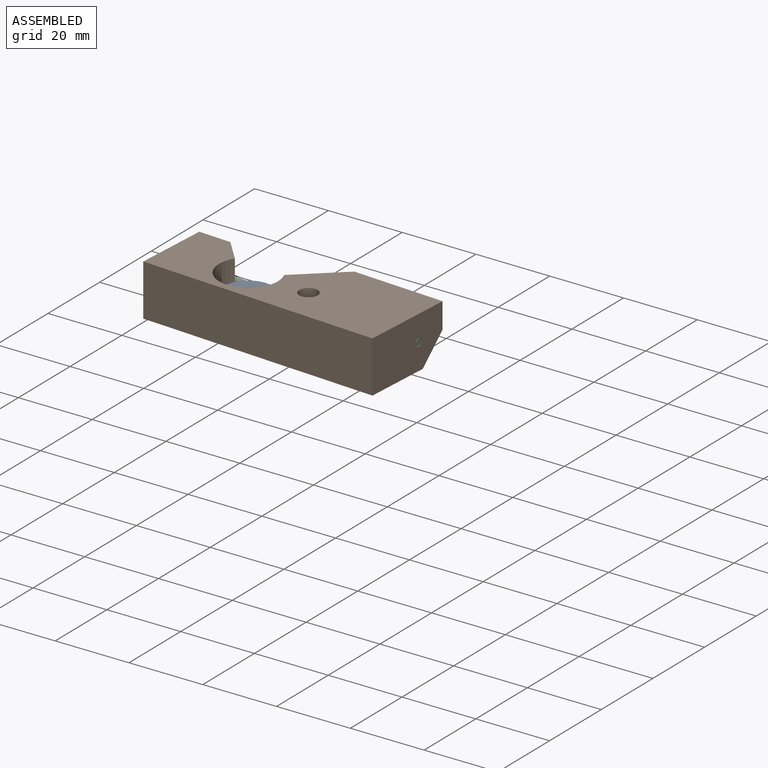
[diagram: assembled view]
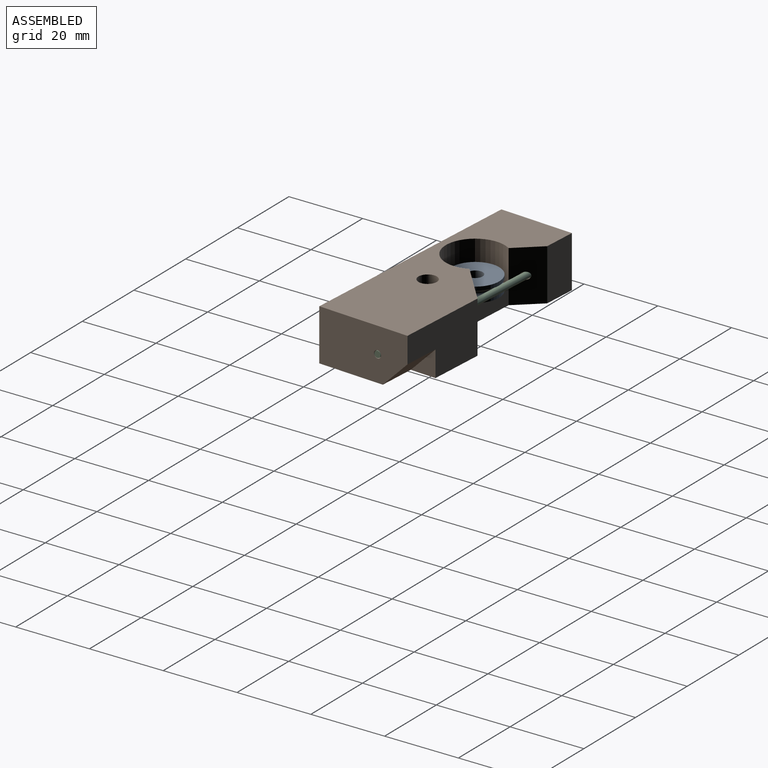
[diagram: assembled view, second angle]
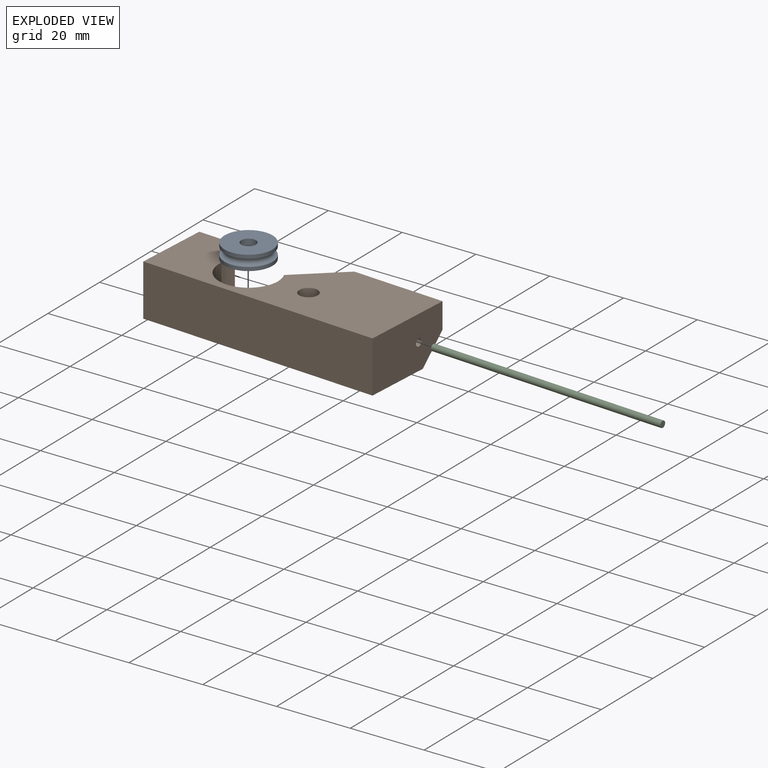
[diagram: exploded view]
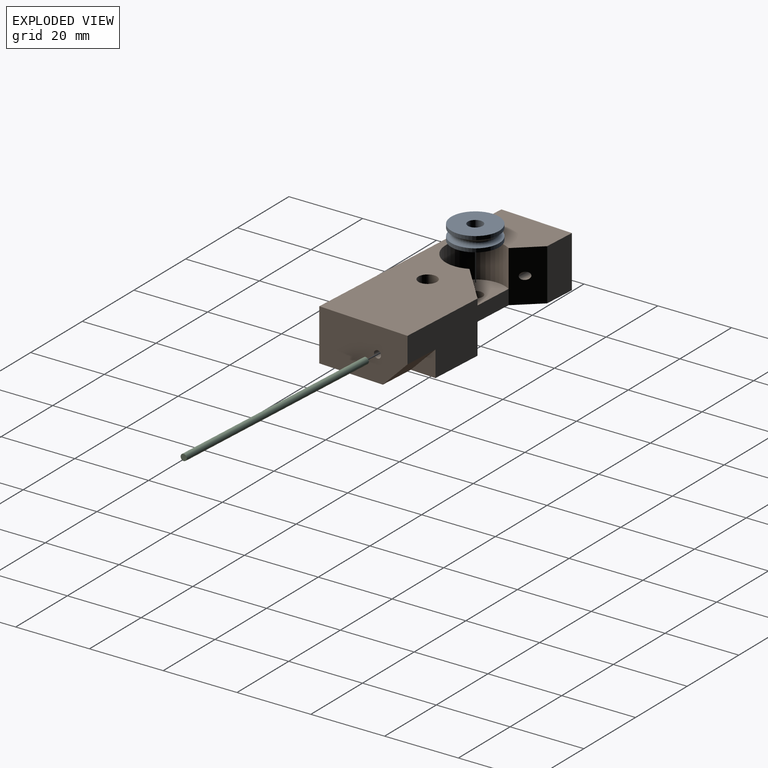
[diagram: exploded view, second angle]
ASSEMBLY  parts=3 mates=2
PART A: 6 faces, bbox 15.6x15.6x4 mm
  f0: cylinder r=2mm len=4mm, axis (0,0,-1), area 50.3mm2, adj f1,f5
  f1: plane 13x13mm, normal (0,0,-1), area 120.2mm2, adj f0,f2
  f2: cylinder r=6.5mm len=13mm, axis (0,0,-1), area 40.8mm2, adj f1,f3
  f3: torus R=6.5mm, axis (0,0,-1), area 115.7mm2, adj f2,f4
  f4: cylinder r=6.5mm len=13mm, axis (0,0,-1), area 40.8mm2, adj f3,f5
  f5: plane 13x13mm, normal (0,0,1), area 120.2mm2, adj f0,f4
PART B: 18 faces, bbox 65.4x25.4x14.4 mm
  f0: plane 25x14mm, normal (1,0,0), area 322.4mm2, adj f4,f5,f9,f10,f14,f16
  f1: plane 14.42x6.52mm, normal (0.71,0.71,0), area 116.4mm2, adj f2,f8,f9,f10,f11,f17
  f2: plane 14x8.82mm, normal (0,1,0), area 123.5mm2, adj f1,f3,f9,f10
  f3: plane 20x14mm, normal (-1,0,0), area 276.9mm2, adj f2,f4,f9,f10,f17
  f4: plane 65x14mm, normal (0,-1,0), area 910mm2, adj f0,f3,f9,f10
  f5: plane 25x14mm, normal (0,1,0), area 280mm2, adj f0,f6,f9,f10,f14,f15
  f6: plane 14x11.1mm, normal (-0.71,0.71,0), area 215.4mm2, adj f5,f8,f9,f10,f11,f16
  f7: cylinder r=2.5mm len=14mm, axis (0,0,-1), area 219.9mm2, adj f9,f10
  f8: cylinder r=8mm len=16mm, axis (0,0,-1), area 332.8mm2, adj f1,f6,f9,f13
  f9: plane 65x25mm, normal (0,0,1), area 1135mm2, adj f0,f1,f2,f3,f4,f5,f6,f7
  f10: plane 65x25mm, normal (0,0,-1), area 1212.8mm2, adj f0,f1,f2,f3,f4,f5,f6,f7
  f11: plane 13.97x4mm, normal (0,1,0), area 55.9mm2, adj f1,f6,f10,f13
  f12: cylinder r=2mm len=4mm, axis (0,0,-1), area 50.3mm2, adj f10,f13
  f13: plane 16x11.9mm, normal (0,0,1), area 147.8mm2, adj f8,f11,f12
  f14: plane 10x7mm, normal (0,0.71,-0.71), area 99mm2, adj f0,f5,f10,f15
  f15: plane 7x7mm, normal (1,0,0), area 24.5mm2, adj f5,f10,f14
  f16: cylinder r=1mm len=34.51mm, axis (1,0,0), area 210.5mm2, adj f0,f6
  f17: cylinder r=1mm len=13.32mm, axis (1,0,0), area 77.2mm2, adj f1,f3
PART C: 3 faces, bbox 65x1.8x1.8 mm
  f0: plane 1.75x1.75mm, normal (1,0,0), area 2.4mm2, adj f1
  f1: cylinder r=0.88mm len=65mm, axis (-1,0,0), area 357.4mm2, adj f0,f2
  f2: plane 1.75x1.75mm, normal (-1,0,0), area 2.4mm2, adj f1
PLACE A rot(axis=(0,0,-1),8.3deg) t=(18.53,-34.47,24)mm
PLACE B rot(axis=(0,0,-1),3.5deg) t=(16.71,-74.1,17)mm
PLACE C rot(axis=(0,0,-1),3.5deg) t=(16.71,-74.1,17)mm
MATE revolute C.f1 <-> B.f16  axis (-1,0.06,0) through (-2.95,-26.66,24)mm
MATE revolute A.f0 <-> B.f8  axis (0,0,-1) through (18.53,-34.47,22)mm
